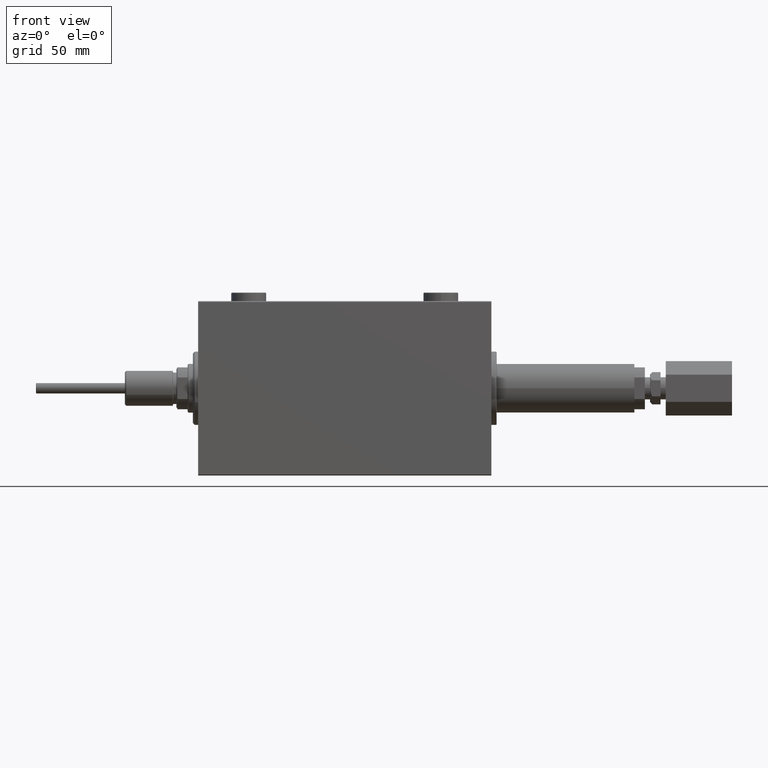
[diagram: clean part render]
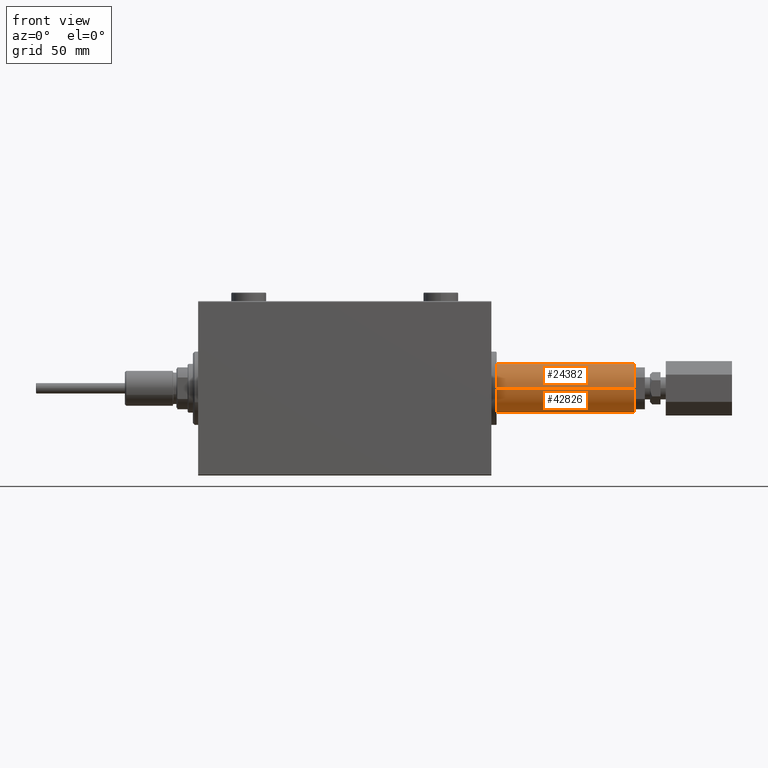
[diagram: same view with one multi-face feature highlighted, each face labeled with its STEP entity id]
A machine part, front view. The highlighted faces form ONE feature: a constant-radius fillet chain: 2 tangent blend faces with common blend radius 14 mm. The faces share edges in the B-rep.
Their STEP definitions:
[1] entity #24382 (Cylinder):
#130 = CARTESIAN_POINT ( 'NONE',  ( 83.00000000000000000, 0.000000000000000000, 0.000000000000000000 ) ) ;
#1859 = EDGE_CURVE ( 'NONE', #2689, #35100, #46861, .T. ) ;
#2689 = VERTEX_POINT ( 'NONE', #45487 ) ;
#4015 = DIRECTION ( 'NONE',  ( 0.000000000000000000, 0.000000000000000000, 1.000000000000000000 ) ) ;
#4253 = CYLINDRICAL_SURFACE ( 'NONE', #45720, 13.99999999999999822 ) ;
#4977 = FACE_OUTER_BOUND ( 'NONE', #10796, .T. ) ;
#7766 = EDGE_CURVE ( 'NONE', #27440, #35540, #47895, .T. ) ;
#10796 = EDGE_LOOP ( 'NONE', ( #20800, #21281, #22318, #17513 ) ) ;
#10897 = DIRECTION ( 'NONE',  ( 1.000000000000000000, 0.000000000000000000, 0.000000000000000000 ) ) ;
#13529 = DIRECTION ( 'NONE',  ( -1.000000000000000000, -0.000000000000000000, -0.000000000000000000 ) ) ;
#14305 = CARTESIAN_POINT ( 'NONE',  ( 83.00000000000000000, 0.000000000000000000, 13.99999999999999822 ) ) ;
#15066 = DIRECTION ( 'NONE',  ( 0.000000000000000000, 0.000000000000000000, -1.000000000000000000 ) ) ;
#17513 = ORIENTED_EDGE ( 'NONE', *, *, #42764, .T. ) ;
#19921 = CARTESIAN_POINT ( 'NONE',  ( 83.00000000000000000, 0.000000000000000000, 0.000000000000000000 ) ) ;
#19935 = DIRECTION ( 'NONE',  ( 0.000000000000000000, 0.000000000000000000, -1.000000000000000000 ) ) ;
#20065 = EDGE_CURVE ( 'NONE', #27440, #2689, #20526, .T. ) ;
#20526 = CIRCLE ( 'NONE', #32247, 13.99999999999999822 ) ;
#20800 = ORIENTED_EDGE ( 'NONE', *, *, #1859, .F. ) ;
#21281 = ORIENTED_EDGE ( 'NONE', *, *, #20065, .F. ) ;
#22318 = ORIENTED_EDGE ( 'NONE', *, *, #7766, .T. ) ;
#22630 = DIRECTION ( 'NONE',  ( -1.000000000000000000, -0.000000000000000000, -0.000000000000000000 ) ) ;
#24382 = ADVANCED_FACE ( 'NONE', ( #4977 ), #4253, .T. ) ;
#27440 = VERTEX_POINT ( 'NONE', #42744 ) ;
#27539 = DIRECTION ( 'NONE',  ( 1.000000000000000000, -0.000000000000000000, -0.000000000000000000 ) ) ;
#29624 = VECTOR ( 'NONE', #41015, 1000.000000000000000 ) ;
#32247 = AXIS2_PLACEMENT_3D ( 'NONE', #130, #10897, #15066 ) ;
#35100 = VERTEX_POINT ( 'NONE', #40437 ) ;
#35540 = VERTEX_POINT ( 'NONE', #37921 ) ;
#37564 = AXIS2_PLACEMENT_3D ( 'NONE', #45927, #27539, #19935 ) ;
#37921 = CARTESIAN_POINT ( 'NONE',  ( 0.3000000000000641043, 0.000000000000000000, 13.99999999999999822 ) ) ;
#40437 = CARTESIAN_POINT ( 'NONE',  ( 0.3000000000000641043, 1.714505518806294441E-15, -13.99999999999999822 ) ) ;
#40465 = VECTOR ( 'NONE', #13529, 1000.000000000000000 ) ;
#41015 = DIRECTION ( 'NONE',  ( -1.000000000000000000, -0.000000000000000000, -0.000000000000000000 ) ) ;
#41483 = CIRCLE ( 'NONE', #37564, 13.99999999999999822 ) ;
#42744 = CARTESIAN_POINT ( 'NONE',  ( 83.00000000000000000, 0.000000000000000000, 13.99999999999999822 ) ) ;
#42764 = EDGE_CURVE ( 'NONE', #35540, #35100, #41483, .T. ) ;
#42930 = CARTESIAN_POINT ( 'NONE',  ( 83.00000000000000000, 1.714505518806294441E-15, -13.99999999999999822 ) ) ;
#45487 = CARTESIAN_POINT ( 'NONE',  ( 83.00000000000000000, 1.714505518806294441E-15, -13.99999999999999822 ) ) ;
#45720 = AXIS2_PLACEMENT_3D ( 'NONE', #19921, #22630, #4015 ) ;
#45927 = CARTESIAN_POINT ( 'NONE',  ( 0.3000000000000641043, 0.000000000000000000, 0.000000000000000000 ) ) ;
#46861 = LINE ( 'NONE', #42930, #40465 ) ;
#47895 = LINE ( 'NONE', #14305, #29624 ) ;
[2] entity #42826 (Cylinder):
#430 = CIRCLE ( 'NONE', #24684, 13.99999999999999822 ) ;
#1756 = EDGE_LOOP ( 'NONE', ( #3280, #11128, #17988, #6457 ) ) ;
#1859 = EDGE_CURVE ( 'NONE', #2689, #35100, #46861, .T. ) ;
#2689 = VERTEX_POINT ( 'NONE', #45487 ) ;
#3280 = ORIENTED_EDGE ( 'NONE', *, *, #46690, .F. ) ;
#6457 = ORIENTED_EDGE ( 'NONE', *, *, #7766, .F. ) ;
#7766 = EDGE_CURVE ( 'NONE', #27440, #35540, #47895, .T. ) ;
#9781 = CARTESIAN_POINT ( 'NONE',  ( 0.3000000000000641043, 0.000000000000000000, 0.000000000000000000 ) ) ;
#11128 = ORIENTED_EDGE ( 'NONE', *, *, #1859, .T. ) ;
#11756 = AXIS2_PLACEMENT_3D ( 'NONE', #35130, #39046, #31689 ) ;
#12287 = DIRECTION ( 'NONE',  ( 1.000000000000000000, 0.000000000000000000, 0.000000000000000000 ) ) ;
#13529 = DIRECTION ( 'NONE',  ( -1.000000000000000000, -0.000000000000000000, -0.000000000000000000 ) ) ;
#14305 = CARTESIAN_POINT ( 'NONE',  ( 83.00000000000000000, 0.000000000000000000, 13.99999999999999822 ) ) ;
#17393 = DIRECTION ( 'NONE',  ( 1.000000000000000000, -0.000000000000000000, -0.000000000000000000 ) ) ;
#17988 = ORIENTED_EDGE ( 'NONE', *, *, #31741, .T. ) ;
#18028 = CIRCLE ( 'NONE', #33688, 13.99999999999999822 ) ;
#24507 = CARTESIAN_POINT ( 'NONE',  ( 83.00000000000000000, 0.000000000000000000, 0.000000000000000000 ) ) ;
#24684 = AXIS2_PLACEMENT_3D ( 'NONE', #9781, #17393, #24723 ) ;
#24723 = DIRECTION ( 'NONE',  ( 0.000000000000000000, 0.000000000000000000, -1.000000000000000000 ) ) ;
#27440 = VERTEX_POINT ( 'NONE', #42744 ) ;
#29624 = VECTOR ( 'NONE', #41015, 1000.000000000000000 ) ;
#31626 = DIRECTION ( 'NONE',  ( 0.000000000000000000, 0.000000000000000000, -1.000000000000000000 ) ) ;
#31689 = DIRECTION ( 'NONE',  ( 0.000000000000000000, 0.000000000000000000, 1.000000000000000000 ) ) ;
#31741 = EDGE_CURVE ( 'NONE', #35100, #35540, #430, .T. ) ;
#33688 = AXIS2_PLACEMENT_3D ( 'NONE', #24507, #12287, #31626 ) ;
#35100 = VERTEX_POINT ( 'NONE', #40437 ) ;
#35130 = CARTESIAN_POINT ( 'NONE',  ( 83.00000000000000000, 0.000000000000000000, 0.000000000000000000 ) ) ;
#35540 = VERTEX_POINT ( 'NONE', #37921 ) ;
#37921 = CARTESIAN_POINT ( 'NONE',  ( 0.3000000000000641043, 0.000000000000000000, 13.99999999999999822 ) ) ;
#39046 = DIRECTION ( 'NONE',  ( -1.000000000000000000, -0.000000000000000000, -0.000000000000000000 ) ) ;
#40437 = CARTESIAN_POINT ( 'NONE',  ( 0.3000000000000641043, 1.714505518806294441E-15, -13.99999999999999822 ) ) ;
#40465 = VECTOR ( 'NONE', #13529, 1000.000000000000000 ) ;
#41015 = DIRECTION ( 'NONE',  ( -1.000000000000000000, -0.000000000000000000, -0.000000000000000000 ) ) ;
#42744 = CARTESIAN_POINT ( 'NONE',  ( 83.00000000000000000, 0.000000000000000000, 13.99999999999999822 ) ) ;
#42826 = ADVANCED_FACE ( 'NONE', ( #43219 ), #46896, .T. ) ;
#42930 = CARTESIAN_POINT ( 'NONE',  ( 83.00000000000000000, 1.714505518806294441E-15, -13.99999999999999822 ) ) ;
#43219 = FACE_OUTER_BOUND ( 'NONE', #1756, .T. ) ;
#45487 = CARTESIAN_POINT ( 'NONE',  ( 83.00000000000000000, 1.714505518806294441E-15, -13.99999999999999822 ) ) ;
#46690 = EDGE_CURVE ( 'NONE', #2689, #27440, #18028, .T. ) ;
#46861 = LINE ( 'NONE', #42930, #40465 ) ;
#46896 = CYLINDRICAL_SURFACE ( 'NONE', #11756, 13.99999999999999822 ) ;
#47895 = LINE ( 'NONE', #14305, #29624 ) ;